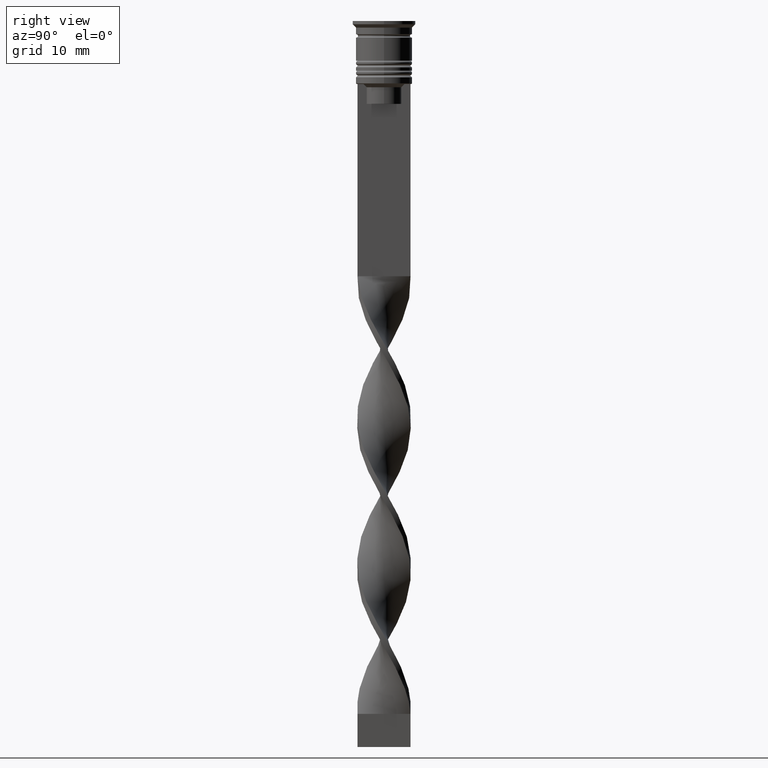
[diagram: clean part render]
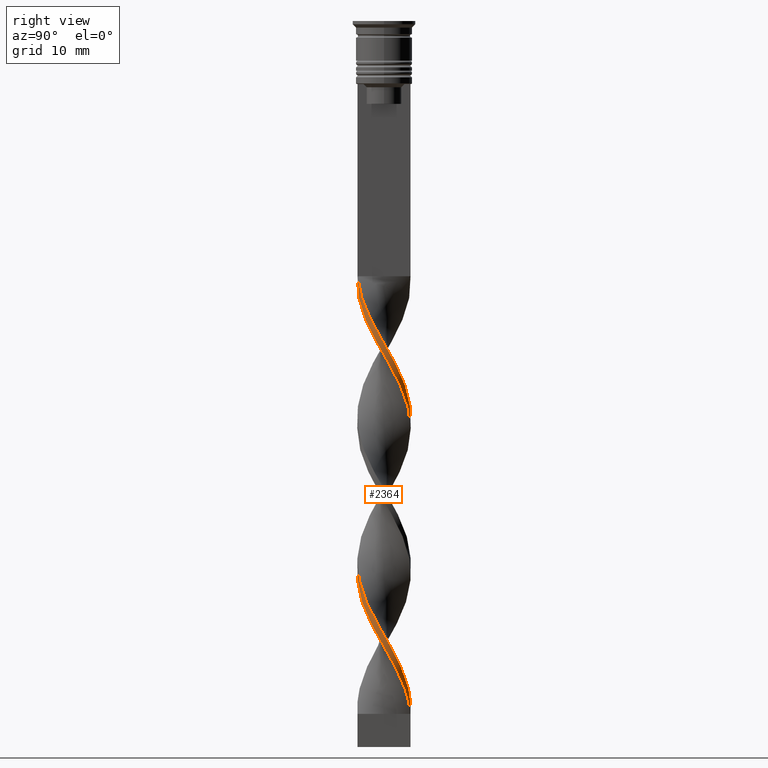
[diagram: same view with one face highlighted and labeled with its STEP entity id]
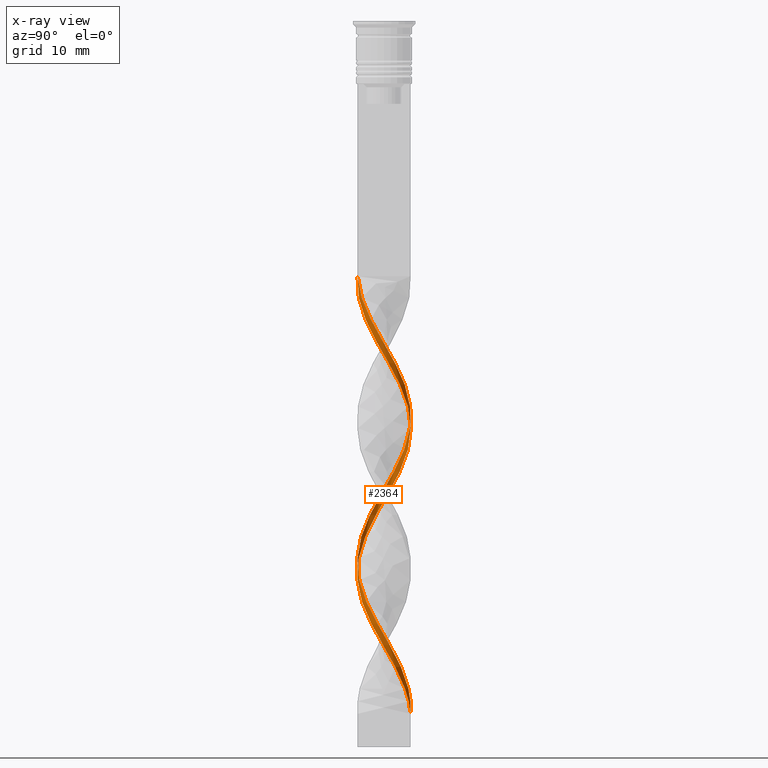
[diagram: x-ray of the same camera — body ghosted, the highlighted face saturated]
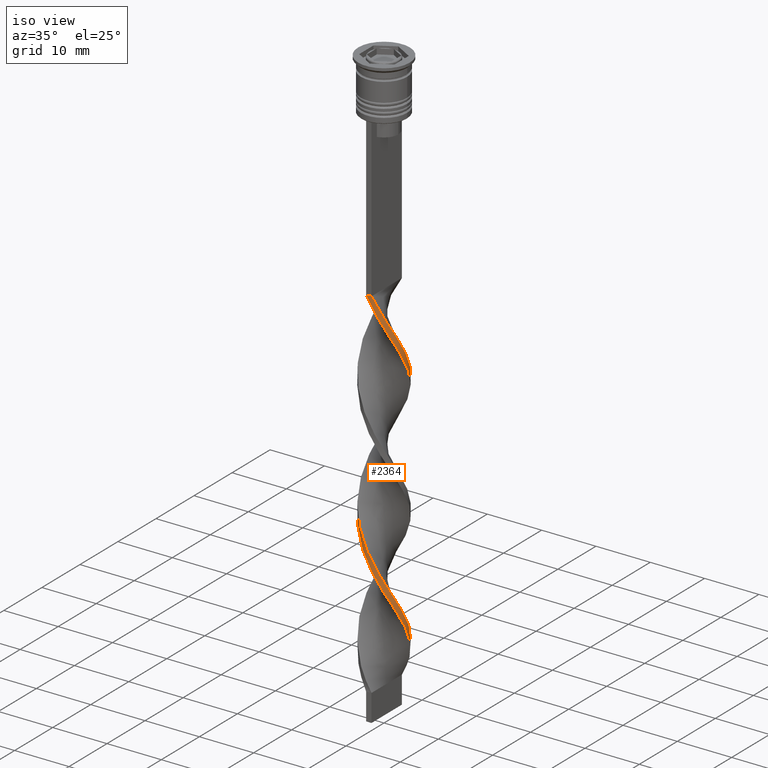
[diagram: same view with one face highlighted and labeled with its STEP entity id]
A machine part, right view. The second image highlights one B-rep face of the part: STEP entity #2364.
The next image is the same camera in x-ray: the body ghosted, the highlighted face saturated — about 0% of this face is hidden behind the body in this view.
A second angle (iso view) of the same face is appended — the face is thin or edge-on in the first view.
In plain terms, the highlighted face is a freeform B-spline surface patch.
Its self-contained STEP definition (entity closure, byte-faithful):
#4 = CARTESIAN_POINT ( 'NONE',  ( 4.029378707462731413, -0.5036723384328416486, -93.49999999999998579 ) ) ;
#7 = CARTESIAN_POINT ( 'NONE',  ( -3.575967836940203703, 1.860767053977795404, -67.26923076923077360 ) ) ;
#17 = CARTESIAN_POINT ( 'NONE',  ( -0.01431206711095789688, -4.060710991611130360, -83.34615384615386802 ) ) ;
#20 = CARTESIAN_POINT ( 'NONE',  ( 4.029378707462731413, 0.5036723384328412045, -49.50000000000000000 ) ) ;
#35 = CARTESIAN_POINT ( 'NONE',  ( -3.917367414262927561, -0.9509114268274349024, -74.03846153846153300 ) ) ;
#37 = CARTESIAN_POINT ( 'NONE',  ( 4.032828965577023972, -0.4752569063773721680, -47.80769230769230660 ) ) ;
#44 = ORIENTED_EDGE ( 'NONE', *, *, #1652, .T. ) ;
#54 = CARTESIAN_POINT ( 'NONE',  ( 3.575967836940203703, -1.860767053977795404, -45.26923076923076650 ) ) ;
#65 = CARTESIAN_POINT ( 'NONE',  ( -3.026746007048732423, -2.662481663564005174, -77.42307692307693401 ) ) ;
#67 = CARTESIAN_POINT ( 'NONE',  ( 0.01431206711095556715, -4.060710991611130360, -81.65384615384616041 ) ) ;
#106 = CARTESIAN_POINT ( 'NONE',  ( -3.791755605066378987, -1.453329977707795484, -73.19230769230770761 ) ) ;
#119 = CARTESIAN_POINT ( 'NONE',  ( 2.682036731043690114, -3.048976478425000636, -44.42307692307692690 ) ) ;
#122 = CARTESIAN_POINT ( 'NONE',  ( -0.9856879328890411074, 3.939289008388870084, -61.34615384615383959 ) ) ;
#155 = CARTESIAN_POINT ( 'NONE',  ( 0.9856879328890421066, -3.939289008388869640, -83.34615384615386802 ) ) ;
#156 = CARTESIAN_POINT ( 'NONE',  ( -4.029378707462731413, -0.5036723384328406494, -71.50000000000000000 ) ) ;
#157 =( BOUNDED_SURFACE ( )  B_SPLINE_SURFACE ( 1, 2, ( 
 ( #1238, #2052, #1253, #2904, #2620, #2352, #1199, #2369, #1219, #2582, #3136, #3112, #2597, #2294, #3150, #2918, #2869, #965, #442, #3185, #1787, #1753, #3166, #694, #925, #2309, #1804, #122, #2329, #1772, #1549, #639, #429, #2638, #2654, #661, #374, #1534, #911, #156, #1478, #106, #388, #476, #1076, #1878, #1058, #1856, #792, #3268, #1017, #1343, #1588, #2185, #2167, #1324, #2123, #1894, #3284, #807, #2933, #1910, #531, #1291, #1306, #3222, #244, #3005, #1647, #208, #2969, #456, #3203, #2671, #1842, #173, #2949, #751, #2438 ),
 ( #2461, #2421, #225, #2689, #1271, #192, #2986, #2385, #2406, #3472, #2705, #3511, #1034, #2141, #3530, #496, #512, #3242, #3553, #1607, #772, #2105, #1626, #2721, #1001, #734, #1564, #3488, #1933, #1664, #2763, #3047, #316, #1112, #3352, #3371, #873, #2478, #895, #844, #2256, #282, #35, #1679, #859, #1966, #65, #1998, #1383, #2794, #2491, #3029, #1982, #17, #1131, #2511, #1419, #3095, #3321, #2539, #2274, #1400, #3078, #267, #620, #4, #2777, #825, #2224, #1435, #555, #2525, #1363, #2745, #1147, #606, #1950, #2241, #3335 ) ),
 .UNSPECIFIED., .F., .F., .F. ) 
 B_SPLINE_SURFACE_WITH_KNOTS ( ( 2, 2 ),
 ( 3, 2, 2, 2, 2, 2, 2, 2, 2, 2, 2, 2, 2, 2, 2, 2, 2, 2, 2, 2, 2, 2, 2, 2, 2, 2, 2, 2, 2, 2, 2, 2, 2, 2, 2, 2, 2, 2, 2, 3 ),
 ( 0.000000000000000000, 1.000000000000000000 ),
 ( 0.000000000000000000, 0.01923076923076923184, 0.03846153846153846367, 0.05769230769230769551, 0.07692307692307692735, 0.09615384615384615918, 0.1153846153846153910, 0.1346153846153846090, 0.1538461538461538547, 0.1730769230769230727, 0.1923076923076923184, 0.2115384615384615363, 0.2307692307692307820, 0.2500000000000000000, 0.2692307692307692180, 0.2884615384615384359, 0.3076923076923077094, 0.3269230769230769273, 0.3461538461538461453, 0.3653846153846153633, 0.3846153846153846367, 0.4038461538461538547, 0.4230769230769230727, 0.4423076923076922906, 0.4615384615384615641, 0.4807692307692307820, 0.5000000000000000000, 0.5192307692307692735, 0.5384615384615384359, 0.5576923076923077094, 0.5769230769230768718, 0.5961538461538461453, 0.6153846153846154188, 0.6346153846153845812, 0.6538461538461538547, 0.6730769230769231282, 0.6923076923076922906, 0.7115384615384615641, 0.7307692307692307265, 0.7500000000000000000 ),
 .UNSPECIFIED. ) 
 GEOMETRIC_REPRESENTATION_ITEM ( )  RATIONAL_B_SPLINE_SURFACE ( (
 ( 1.000000000000000000, 0.9927088740980539727, 1.000000000000000000, 0.9927088740980539727, 1.000000000000000000, 0.9927088740980539727, 1.000000000000000000, 0.9927088740980539727, 1.000000000000000000, 0.9927088740980539727, 1.000000000000000000, 0.9927088740980539727, 1.000000000000000000, 0.9927088740980539727, 1.000000000000000000, 0.9927088740980539727, 1.000000000000000000, 0.9927088740980539727, 1.000000000000000000, 0.9927088740980539727, 1.000000000000000000, 0.9927088740980539727, 1.000000000000000000, 0.9927088740980539727, 1.000000000000000000, 0.9927088740980539727, 1.000000000000000000, 0.9927088740980539727, 1.000000000000000000, 0.9927088740980539727, 1.000000000000000000, 0.9927088740980539727, 1.000000000000000000, 0.9927088740980539727, 1.000000000000000000, 0.9927088740980539727, 1.000000000000000000, 0.9927088740980539727, 1.000000000000000000, 0.9927088740980539727, 1.000000000000000000, 0.9927088740980539727, 1.000000000000000000, 0.9927088740980539727, 1.000000000000000000, 0.9927088740980539727, 1.000000000000000000, 0.9927088740980539727, 1.000000000000000000, 0.9927088740980539727, 1.000000000000000000, 0.9927088740980539727, 1.000000000000000000, 0.9927088740980539727, 1.000000000000000000, 0.9927088740980539727, 1.000000000000000000, 0.9927088740980539727, 1.000000000000000000, 0.9927088740980539727, 1.000000000000000000, 0.9927088740980539727, 1.000000000000000000, 0.9927088740980539727, 1.000000000000000000, 0.9927088740980539727, 1.000000000000000000, 0.9927088740980539727, 1.000000000000000000, 0.9927088740980539727, 1.000000000000000000, 0.9927088740980539727, 1.000000000000000000, 0.9927088740980539727, 1.000000000000000000, 0.9927088740980539727, 1.000000000000000000, 0.9927088740980539727, 1.000000000000000000),
 ( 1.000000000000000000, 0.9927088740980539727, 1.000000000000000000, 0.9927088740980539727, 1.000000000000000000, 0.9927088740980539727, 1.000000000000000000, 0.9927088740980539727, 1.000000000000000000, 0.9927088740980539727, 1.000000000000000000, 0.9927088740980539727, 1.000000000000000000, 0.9927088740980539727, 1.000000000000000000, 0.9927088740980539727, 1.000000000000000000, 0.9927088740980539727, 1.000000000000000000, 0.9927088740980539727, 1.000000000000000000, 0.9927088740980539727, 1.000000000000000000, 0.9927088740980539727, 1.000000000000000000, 0.9927088740980539727, 1.000000000000000000, 0.9927088740980539727, 1.000000000000000000, 0.9927088740980539727, 1.000000000000000000, 0.9927088740980539727, 1.000000000000000000, 0.9927088740980539727, 1.000000000000000000, 0.9927088740980539727, 1.000000000000000000, 0.9927088740980539727, 1.000000000000000000, 0.9927088740980539727, 1.000000000000000000, 0.9927088740980539727, 1.000000000000000000, 0.9927088740980539727, 1.000000000000000000, 0.9927088740980539727, 1.000000000000000000, 0.9927088740980539727, 1.000000000000000000, 0.9927088740980539727, 1.000000000000000000, 0.9927088740980539727, 1.000000000000000000, 0.9927088740980539727, 1.000000000000000000, 0.9927088740980539727, 1.000000000000000000, 0.9927088740980539727, 1.000000000000000000, 0.9927088740980539727, 1.000000000000000000, 0.9927088740980539727, 1.000000000000000000, 0.9927088740980539727, 1.000000000000000000, 0.9927088740980539727, 1.000000000000000000, 0.9927088740980539727, 1.000000000000000000, 0.9927088740980539727, 1.000000000000000000, 0.9927088740980539727, 1.000000000000000000, 0.9927088740980539727, 1.000000000000000000, 0.9927088740980539727, 1.000000000000000000, 0.9927088740980539727, 1.000000000000000000) ) ) 
 REPRESENTATION_ITEM ( '' )  SURFACE ( )  );
#170 = CARTESIAN_POINT ( 'NONE',  ( 3.801905862948830261, 1.426565947277498081, -96.88461538461538680 ) ) ;
#173 = CARTESIAN_POINT ( 'NONE',  ( 0.9578955639853687920, 3.946139212084844416, -101.9615384615384670 ) ) ;
#184 = CARTESIAN_POINT ( 'NONE',  ( 1.899779198837473038, 3.588929866731988660, -57.96153846153846700 ) ) ;
#192 = CARTESIAN_POINT ( 'NONE',  ( 1.874433786711570571, -3.602232165184604096, -42.73076923076923350 ) ) ;
#205 = CARTESIAN_POINT ( 'NONE',  ( 3.026746007048731979, 2.662481663564005618, -99.42307692307691980 ) ) ;
#208 = CARTESIAN_POINT ( 'NONE',  ( 3.333769449374405447, 2.318525361317902433, -96.88461538461538680 ) ) ;
#222 = CARTESIAN_POINT ( 'NONE',  ( 3.791755605066377655, -1.453329977707797260, -91.80769230769230660 ) ) ;
#225 = CARTESIAN_POINT ( 'NONE',  ( 0.4717917484372050052, -4.003425101847986944, -40.19230769230769340 ) ) ;
#244 = CARTESIAN_POINT ( 'NONE',  ( 3.910567156264554534, 0.9785011580703186773, -94.34615384615385381 ) ) ;
#256 = VERTEX_POINT ( 'NONE', #1911 ) ;
#257 = ORIENTED_EDGE ( 'NONE', *, *, #2559, .T. ) ;
#267 = CARTESIAN_POINT ( 'NONE',  ( 3.791755605066377655, -1.453329977707797260, -91.80769230769230660 ) ) ;
#269 = CARTESIAN_POINT ( 'NONE',  ( 2.682036731043691002, 3.048976478424999303, -54.57692307692308731 ) ) ;
#282 = CARTESIAN_POINT ( 'NONE',  ( -4.032828965577023972, -0.4752569063773701696, -73.19230769230770761 ) ) ;
#316 = CARTESIAN_POINT ( 'NONE',  ( -2.278235258877629565, 3.325604321804802588, -65.57692307692308020 ) ) ;
#318 = CARTESIAN_POINT ( 'NONE',  ( 0.9578955639853689030, 3.946139212084843972, -57.96153846153846700 ) ) ;
#333 = CARTESIAN_POINT ( 'NONE',  ( -1.416164675348472235, -3.774185688634722702, -79.11538461538461320 ) ) ;
#370 = CARTESIAN_POINT ( 'NONE',  ( 0.1666666666666672403, 4.000000000000000000, -104.5000000000000142 ) ) ;
#373 = CARTESIAN_POINT ( 'NONE',  ( 3.801905862948830706, -1.426565947277498525, -90.11538461538462741 ) ) ;
#374 = CARTESIAN_POINT ( 'NONE',  ( -3.917367414262926673, 0.9509114268274362347, -68.96153846153846700 ) ) ;
#387 = CARTESIAN_POINT ( 'NONE',  ( 2.703462203165886368, -3.029995166449922284, -86.73076923076922640 ) ) ;
#388 = CARTESIAN_POINT ( 'NONE',  ( -3.562762527220391551, -1.885927669512849514, -74.03846153846153300 ) ) ;
#405 = CARTESIAN_POINT ( 'NONE',  ( 3.917367414262926673, -0.9509114268274357906, -90.96153846153845279 ) ) ;
#422 = CARTESIAN_POINT ( 'NONE',  ( 3.026746007048731979, 2.662481663564005618, -55.42307692307691980 ) ) ;
#428 = CARTESIAN_POINT ( 'NONE',  ( 4.031103836519878136, 0.01420771602773408804, -92.65384615384616041 ) ) ;
#429 = CARTESIAN_POINT ( 'NONE',  ( -3.026746007048730647, 2.662481663564007839, -65.57692307692308020 ) ) ;
#439 = CARTESIAN_POINT ( 'NONE',  ( 3.333769449374404559, -2.318525361317903322, -90.11538461538462741 ) ) ;
#442 = CARTESIAN_POINT ( 'NONE',  ( 3.007903090209048003, 2.683750919871450868, -53.73076923076923350 ) ) ;
#453 = CARTESIAN_POINT ( 'NONE',  ( 1.874433786711570349, -3.602232165184604096, -86.73076923076922640 ) ) ;
#456 = CARTESIAN_POINT ( 'NONE',  ( 2.682036731043690558, 3.048976478424999303, -98.57692307692310862 ) ) ;
#469 = CARTESIAN_POINT ( 'NONE',  ( 0.9856879328890441050, 3.939289008388869640, -59.65384615384615330 ) ) ;
#476 = CARTESIAN_POINT ( 'NONE',  ( -3.333769449374406335, -2.318525361317901101, -74.88461538461538680 ) ) ;
#492 = CARTESIAN_POINT ( 'NONE',  ( -0.9856879328890445491, -3.939289008388869640, -81.65384615384616041 ) ) ;
#496 = CARTESIAN_POINT ( 'NONE',  ( 4.032828965577023084, 0.4752569063773717239, -51.19230769230768630 ) ) ;
#512 = CARTESIAN_POINT ( 'NONE',  ( 3.917367414262927561, 0.9509114268274344584, -52.03846153846154010 ) ) ;
#531 = CARTESIAN_POINT ( 'NONE',  ( 3.917367414262926673, -0.9509114268274357906, -90.96153846153845279 ) ) ;
#555 = CARTESIAN_POINT ( 'NONE',  ( 3.575967836940204148, 1.860767053977794516, -97.73076923076922640 ) ) ;
#573 = CARTESIAN_POINT ( 'NONE',  ( -3.910567156264555422, -0.9785011580703162348, -72.34615384615383959 ) ) ;
#589 = CARTESIAN_POINT ( 'NONE',  ( -2.703462203165885924, 3.029995166449922728, -64.73076923076922640 ) ) ;
#606 = CARTESIAN_POINT ( 'NONE',  ( 1.899779198837473038, 3.588929866731988216, -101.9615384615384670 ) ) ;
#608 = CARTESIAN_POINT ( 'NONE',  ( -1.874433786711571237, -3.602232165184603652, -78.26923076923077360 ) ) ;
#620 = CARTESIAN_POINT ( 'NONE',  ( 3.910567156264554534, -0.9785011580703200096, -92.65384615384616041 ) ) ;
#638 = CARTESIAN_POINT ( 'NONE',  ( 3.562762527220391551, 1.885927669512849070, -96.03846153846154721 ) ) ;
#639 = CARTESIAN_POINT ( 'NONE',  ( -2.703462203165885924, 3.029995166449922728, -64.73076923076921219 ) ) ;
#660 = CARTESIAN_POINT ( 'NONE',  ( 3.333769449374405447, 2.318525361317902878, -96.88461538461538680 ) ) ;
#661 = CARTESIAN_POINT ( 'NONE',  ( -3.801905862948829373, 1.426565947277500745, -68.11538461538462741 ) ) ;
#672 = CARTESIAN_POINT ( 'NONE',  ( 0.5000000000000005551, 4.000000000000000000, -104.5000000000000142 ) ) ;
#691 = CARTESIAN_POINT ( 'NONE',  ( 4.029378707462731413, -0.5036723384328416486, -49.50000000000000000 ) ) ;
#694 = CARTESIAN_POINT ( 'NONE',  ( 0.9578955639853687920, 3.946139212084844416, -57.96153846153846700 ) ) ;
#704 = CARTESIAN_POINT ( 'NONE',  ( 0.5000000000000005551, 4.000000000000000000, -104.5000000000000142 ) ) ;
#711 = CARTESIAN_POINT ( 'NONE',  ( -0.01431206711095789862, -4.060710991611130360, -83.34615384615386802 ) ) ;
#730 = CARTESIAN_POINT ( 'NONE',  ( 2.301620701001679148, 3.309462516590954806, -101.1153846153846132 ) ) ;
#734 = CARTESIAN_POINT ( 'NONE',  ( 0.9856879328890439940, 3.939289008388870084, -59.65384615384615330 ) ) ;
#746 = CARTESIAN_POINT ( 'NONE',  ( -1.442733565863260736, -3.764109437560427818, -80.80769230769230660 ) ) ;
#751 = CARTESIAN_POINT ( 'NONE',  ( -0.01431206711095605461, 4.060710991611130360, -103.6538461538461604 ) ) ;
#767 = CARTESIAN_POINT ( 'NONE',  ( -0.4717917484372037285, 4.003425101847986944, -62.19230769230769340 ) ) ;
#772 = CARTESIAN_POINT ( 'NONE',  ( 3.026746007048731979, 2.662481663564005618, -55.42307692307691980 ) ) ;
#786 = CARTESIAN_POINT ( 'NONE',  ( 2.301620701001679148, 3.309462516590954806, -57.11538461538461320 ) ) ;
#792 = CARTESIAN_POINT ( 'NONE',  ( -1.416164675348472235, -3.774185688634722702, -79.11538461538461320 ) ) ;
#807 = CARTESIAN_POINT ( 'NONE',  ( 3.350029810931576701, -2.294968160678092506, -88.42307692307693401 ) ) ;
#825 = CARTESIAN_POINT ( 'NONE',  ( 4.032828965577023084, 0.4752569063773717239, -95.19230769230769340 ) ) ;
#831 = CARTESIAN_POINT ( 'NONE',  ( 1.899779198837471705, -3.588929866731989549, -41.03846153846154010 ) ) ;
#844 = CARTESIAN_POINT ( 'NONE',  ( -4.029378707462731413, 0.5036723384328422037, -71.50000000000000000 ) ) ;
#846 = CARTESIAN_POINT ( 'NONE',  ( -3.026746007048730647, 2.662481663564007839, -65.57692307692308020 ) ) ;
#855 = CARTESIAN_POINT ( 'NONE',  ( -0.4999999999999994449, 4.000000000000000000, -104.5000000000000142 ) ) ;
#859 = CARTESIAN_POINT ( 'NONE',  ( -3.575967836940204148, -1.860767053977794072, -75.73076923076924061 ) ) ;
#861 = CARTESIAN_POINT ( 'NONE',  ( -2.278235258877631786, -3.325604321804800811, -77.42307692307693401 ) ) ;
#873 = CARTESIAN_POINT ( 'NONE',  ( -3.562762527220391107, 1.885927669512850846, -68.96153846153846700 ) ) ;
#876 = CARTESIAN_POINT ( 'NONE',  ( 1.416164675348469792, 3.774185688634723146, -57.11538461538461320 ) ) ;
#895 = CARTESIAN_POINT ( 'NONE',  ( -3.910567156264554534, 0.9785011580703212308, -70.65384615384614619 ) ) ;
#897 = CARTESIAN_POINT ( 'NONE',  ( 4.031103836519878136, 0.01420771602773408804, -48.65384615384615330 ) ) ;
#911 = CARTESIAN_POINT ( 'NONE',  ( -4.031103836519878136, -0.01420771602773273322, -70.65384615384614619 ) ) ;
#925 = CARTESIAN_POINT ( 'NONE',  ( 0.4717917484372064485, 4.003425101847986056, -58.80769230769231370 ) ) ;
#945 = CARTESIAN_POINT ( 'NONE',  ( 1.874433786711570349, -3.602232165184604096, -42.73076923076923350 ) ) ;
#961 = CARTESIAN_POINT ( 'NONE',  ( 4.031103836519878136, -0.01420771602773549663, -50.34615384615384670 ) ) ;
#965 = CARTESIAN_POINT ( 'NONE',  ( 3.333769449374405447, 2.318525361317902433, -52.88461538461537970 ) ) ;
#979 = CARTESIAN_POINT ( 'NONE',  ( 1.874433786711570793, 3.602232165184603652, -100.2692307692307878 ) ) ;
#996 = CARTESIAN_POINT ( 'NONE',  ( -3.917367414262927561, -0.9509114268274349024, -74.03846153846153300 ) ) ;
#1001 = CARTESIAN_POINT ( 'NONE',  ( 1.442733565863258516, 3.764109437560428262, -58.80769230769231370 ) ) ;
#1013 = CARTESIAN_POINT ( 'NONE',  ( 0.9578955639853675708, -3.946139212084843972, -85.03846153846153300 ) ) ;
#1017 = CARTESIAN_POINT ( 'NONE',  ( -0.4717917484372087800, -4.003425101847986056, -80.80769230769230660 ) ) ;
#1031 = CARTESIAN_POINT ( 'NONE',  ( 0.5000000000000005551, 4.000000000000000000, -60.50000000000000000 ) ) ;
#1034 = CARTESIAN_POINT ( 'NONE',  ( 3.910567156264554534, -0.9785011580703200096, -48.65384615384615330 ) ) ;
#1051 = CARTESIAN_POINT ( 'NONE',  ( -3.910567156264554534, 0.9785011580703212308, -70.65384615384614619 ) ) ;
#1058 = CARTESIAN_POINT ( 'NONE',  ( -2.278235258877631786, -3.325604321804800811, -77.42307692307693401 ) ) ;
#1076 = CARTESIAN_POINT ( 'NONE',  ( -3.007903090209048891, -2.683750919871450868, -75.73076923076924061 ) ) ;
#1112 = CARTESIAN_POINT ( 'NONE',  ( -2.682036731043688782, 3.048976478425001524, -66.42307692307694822 ) ) ;
#1117 = CARTESIAN_POINT ( 'NONE',  ( 3.333769449374405447, 2.318525361317902878, -52.88461538461538680 ) ) ;
#1131 = CARTESIAN_POINT ( 'NONE',  ( 0.4717917484372050052, -4.003425101847986944, -84.19230769230769340 ) ) ;
#1133 = CARTESIAN_POINT ( 'NONE',  ( -3.917367414262926673, 0.9509114268274362347, -68.96153846153846700 ) ) ;
#1147 = CARTESIAN_POINT ( 'NONE',  ( 2.301620701001679148, 3.309462516590954806, -101.1153846153846132 ) ) ;
#1149 = CARTESIAN_POINT ( 'NONE',  ( -1.442733565863255851, 3.764109437560429594, -62.19230769230769340 ) ) ;
#1159 = EDGE_CURVE ( 'NONE', #256, #2150, #1261, .T. ) ;
#1166 = CARTESIAN_POINT ( 'NONE',  ( 3.026746007048731091, -2.662481663564006951, -43.57692307692307310 ) ) ;
#1198 = CARTESIAN_POINT ( 'NONE',  ( 1.442733565863256961, -3.764109437560429150, -84.19230769230769340 ) ) ;
#1199 = CARTESIAN_POINT ( 'NONE',  ( 3.026746007048731091, -2.662481663564006951, -43.57692307692307310 ) ) ;
#1213 = CARTESIAN_POINT ( 'NONE',  ( 0.5000000000000005551, 4.000000000000000000, -104.5000000000000142 ) ) ;
#1214 = CARTESIAN_POINT ( 'NONE',  ( 3.562762527220391107, -1.885927669512850402, -46.96153846153845990 ) ) ;
#1218 = CARTESIAN_POINT ( 'NONE',  ( 3.350029810931576701, -2.294968160678092506, -88.42307692307691980 ) ) ;
#1219 = CARTESIAN_POINT ( 'NONE',  ( 3.575967836940203703, -1.860767053977795404, -45.26923076923076650 ) ) ;
#1238 = CARTESIAN_POINT ( 'NONE',  ( 0.5000000000000000000, -4.000000000000000000, -38.50000000000000000 ) ) ;
#1252 = CARTESIAN_POINT ( 'NONE',  ( 2.278235258877631342, 3.325604321804801256, -99.42307692307691980 ) ) ;
#1253 = CARTESIAN_POINT ( 'NONE',  ( 1.442733565863256961, -3.764109437560429150, -40.19230769230769340 ) ) ;
#1261 =( BOUNDED_CURVE ( )  B_SPLINE_CURVE ( 2, ( #3305, #2765, #2813, #831, #1701, #2748, #1166, #2527, #54, #1386, #2513, #37, #897, #20, #1718, #3323, #2278, #1117, #3064, #269, #2258, #1936, #876, #318, #2000, #1421, #1366, #1650, #1149, #1968, #2226, #589, #846, #2480, #7, #1952, #1133, #3049, #1986, #3081, #573, #3354, #1681, #2780, #2243, #3339, #861, #608, #333, #1437, #2541, #67, #2829, #155, #1198, #2617, #3111, #387, #2032, #1218, #2326, #373, #405, #2637, #428, #2293, #1533, #3454, #638, #660, #1477, #3165, #1252, #979, #3135, #3420, #3385, #2563, #2015 ),
 .UNSPECIFIED., .F., .T. ) 
 B_SPLINE_CURVE_WITH_KNOTS ( ( 3, 2, 2, 2, 2, 2, 2, 2, 2, 2, 2, 2, 2, 2, 2, 2, 2, 2, 2, 2, 2, 2, 2, 2, 2, 2, 2, 2, 2, 2, 2, 2, 2, 2, 2, 2, 2, 2, 2, 3 ),
 ( 0.000000000000000000, 0.01923076923076923184, 0.03846153846153846367, 0.05769230769230768857, 0.07692307692307692735, 0.09615384615384615918, 0.1153846153846153771, 0.1346153846153846090, 0.1538461538461538547, 0.1730769230769230449, 0.1923076923076923184, 0.2115384615384615363, 0.2307692307692307543, 0.2500000000000000000, 0.2692307692307692180, 0.2884615384615384359, 0.3076923076923077094, 0.3269230769230769273, 0.3461538461538460898, 0.3653846153846153633, 0.3846153846153846367, 0.4038461538461539102, 0.4230769230769230727, 0.4423076923076922906, 0.4615384615384615086, 0.4807692307692307820, 0.5000000000000000000, 0.5192307692307692735, 0.5384615384615384359, 0.5576923076923077094, 0.5769230769230768718, 0.5961538461538461453, 0.6153846153846154188, 0.6346153846153845812, 0.6538461538461538547, 0.6730769230769230171, 0.6923076923076921796, 0.7115384615384615641, 0.7307692307692307265, 0.7500000000000000000 ),
 .UNSPECIFIED. ) 
 CURVE ( )  GEOMETRIC_REPRESENTATION_ITEM ( )  RATIONAL_B_SPLINE_CURVE ( ( 1.000000000000000000, 0.9927088740980539727, 1.000000000000000000, 0.9927088740980539727, 1.000000000000000000, 0.9927088740980539727, 1.000000000000000000, 0.9927088740980539727, 1.000000000000000000, 0.9927088740980539727, 1.000000000000000000, 0.9927088740980539727, 1.000000000000000000, 0.9927088740980539727, 1.000000000000000000, 0.9927088740980539727, 1.000000000000000000, 0.9927088740980539727, 1.000000000000000000, 0.9927088740980539727, 1.000000000000000000, 0.9927088740980539727, 1.000000000000000000, 0.9927088740980539727, 1.000000000000000000, 0.9927088740980539727, 1.000000000000000000, 0.9927088740980539727, 1.000000000000000000, 0.9927088740980539727, 1.000000000000000000, 0.9927088740980539727, 1.000000000000000000, 0.9927088740980539727, 1.000000000000000000, 0.9927088740980539727, 1.000000000000000000, 0.9927088740980539727, 1.000000000000000000, 0.9927088740980539727, 1.000000000000000000, 0.9927088740980539727, 1.000000000000000000, 0.9927088740980539727, 1.000000000000000000, 0.9927088740980539727, 1.000000000000000000, 0.9927088740980539727, 1.000000000000000000, 0.9927088740980539727, 1.000000000000000000, 0.9927088740980539727, 1.000000000000000000, 0.9927088740980539727, 1.000000000000000000, 0.9927088740980539727, 1.000000000000000000, 0.9927088740980539727, 1.000000000000000000, 0.9927088740980539727, 1.000000000000000000, 0.9927088740980539727, 1.000000000000000000, 0.9927088740980539727, 1.000000000000000000, 0.9927088740980539727, 1.000000000000000000, 0.9927088740980539727, 1.000000000000000000, 0.9927088740980539727, 1.000000000000000000, 0.9927088740980539727, 1.000000000000000000, 0.9927088740980539727, 1.000000000000000000, 0.9927088740980539727, 1.000000000000000000, 0.9927088740980539727, 1.000000000000000000 ) ) 
 REPRESENTATION_ITEM ( '' )  );
#1266 = CARTESIAN_POINT ( 'NONE',  ( -4.031103836519877248, 0.01420771602773772055, -72.34615384615383959 ) ) ;
#1271 = CARTESIAN_POINT ( 'NONE',  ( 1.416164675348469126, -3.774185688634723590, -41.88461538461537970 ) ) ;
#1288 = CARTESIAN_POINT ( 'NONE',  ( -2.278235258877629565, 3.325604321804802588, -65.57692307692308020 ) ) ;
#1291 = CARTESIAN_POINT ( 'NONE',  ( 4.032828965577023972, -0.4752569063773721680, -91.80769230769230660 ) ) ;
#1303 = CARTESIAN_POINT ( 'NONE',  ( -3.333769449374404115, 2.318525361317905098, -68.11538461538461320 ) ) ;
#1306 = CARTESIAN_POINT ( 'NONE',  ( 4.031103836519878136, 0.01420771602773408804, -92.65384615384616041 ) ) ;
#1320 = CARTESIAN_POINT ( 'NONE',  ( -2.301620701001681368, -3.309462516590953474, -79.11538461538461320 ) ) ;
#1324 = CARTESIAN_POINT ( 'NONE',  ( 1.899779198837471705, -3.588929866731989105, -85.03846153846153300 ) ) ;
#1343 = CARTESIAN_POINT ( 'NONE',  ( 0.01431206711095556715, -4.060710991611130360, -81.65384615384616041 ) ) ;
#1363 = CARTESIAN_POINT ( 'NONE',  ( 3.026746007048731979, 2.662481663564005618, -99.42307692307691980 ) ) ;
#1366 = CARTESIAN_POINT ( 'NONE',  ( -0.4999999999999994449, 4.000000000000000000, -60.50000000000000000 ) ) ;
#1383 = CARTESIAN_POINT ( 'NONE',  ( -2.301620701001681368, -3.309462516590953474, -79.11538461538461320 ) ) ;
#1386 = CARTESIAN_POINT ( 'NONE',  ( 3.801905862948830706, -1.426565947277498525, -46.11538461538462030 ) ) ;
#1400 = CARTESIAN_POINT ( 'NONE',  ( 3.333769449374405003, -2.318525361317902878, -90.11538461538462741 ) ) ;
#1419 = CARTESIAN_POINT ( 'NONE',  ( 1.416164675348469126, -3.774185688634723590, -85.88461538461538680 ) ) ;
#1421 = CARTESIAN_POINT ( 'NONE',  ( -0.01431206711095605461, 4.060710991611130360, -59.65384615384615330 ) ) ;
#1435 = CARTESIAN_POINT ( 'NONE',  ( 3.801905862948830261, 1.426565947277498081, -96.88461538461538680 ) ) ;
#1437 = CARTESIAN_POINT ( 'NONE',  ( -0.9578955639853693471, -3.946139212084843972, -79.96153846153846700 ) ) ;
#1474 = CARTESIAN_POINT ( 'NONE',  ( 3.350029810931577590, 2.294968160678091174, -54.57692307692308731 ) ) ;
#1477 = CARTESIAN_POINT ( 'NONE',  ( 3.007903090209048003, 2.683750919871450868, -97.73076923076922640 ) ) ;
#1478 = CARTESIAN_POINT ( 'NONE',  ( -3.910567156264555422, -0.9785011580703162348, -72.34615384615383959 ) ) ;
#1491 = CARTESIAN_POINT ( 'NONE',  ( 0.4717917484372050052, -4.003425101847986944, -40.19230769230769340 ) ) ;
#1530 = CARTESIAN_POINT ( 'NONE',  ( 3.007903090209047559, -2.683750919871451757, -45.26923076923076650 ) ) ;
#1533 = CARTESIAN_POINT ( 'NONE',  ( 3.910567156264554534, 0.9785011580703186773, -94.34615384615385381 ) ) ;
#1534 = CARTESIAN_POINT ( 'NONE',  ( -4.032828965577023084, 0.4752569063773718350, -69.80769230769230660 ) ) ;
#1546 = CARTESIAN_POINT ( 'NONE',  ( 0.4717917484372050052, -4.003425101847986944, -84.19230769230769340 ) ) ;
#1549 = CARTESIAN_POINT ( 'NONE',  ( -2.301620701001678704, 3.309462516590955250, -63.88461538461538680 ) ) ;
#1561 = CARTESIAN_POINT ( 'NONE',  ( 0.01431206711095876771, 4.060710991611130360, -61.34615384615383249 ) ) ;
#1564 = CARTESIAN_POINT ( 'NONE',  ( 0.5000000000000005551, 4.000000000000000000, -60.50000000000000000 ) ) ;
#1582 = CARTESIAN_POINT ( 'NONE',  ( 3.562762527220391107, -1.885927669512850402, -90.96153846153845279 ) ) ;
#1588 = CARTESIAN_POINT ( 'NONE',  ( 0.5000000000000000000, -4.000000000000000000, -82.50000000000000000 ) ) ;
#1603 = CARTESIAN_POINT ( 'NONE',  ( 3.007903090209047559, -2.683750919871451757, -89.26923076923077360 ) ) ;
#1607 = CARTESIAN_POINT ( 'NONE',  ( 3.350029810931577590, 2.294968160678091618, -54.57692307692308731 ) ) ;
#1622 = VERTEX_POINT ( 'NONE', #1213 ) ;
#1626 = CARTESIAN_POINT ( 'NONE',  ( 2.301620701001679148, 3.309462516590954806, -57.11538461538461320 ) ) ;
#1644 =( BOUNDED_CURVE ( )  B_SPLINE_CURVE ( 2, ( #1782, #2864, #1491, #2594, #2346, #945, #3432, #119, #1530, #3147, #1214, #2290, #2049, #691, #961, #1800, #2899, #2013, #3110, #1474, #422, #3450, #786, #184, #2434, #469, #1031, #1561, #767, #3237, #1838, #2702, #1288, #3526, #2138, #1303, #2929, #1873, #1051, #2162, #1266, #2965, #996, #3217, #2120, #2418, #3263, #2665, #1320, #1890, #746, #492, #1823, #711, #1546, #1013, #3466, #453, #2915, #2102, #1603, #439, #1582, #222, #1853, #2401, #3484, #2649, #3506, #170, #2945, #2686, #205, #2380, #730, #3200, #3442, #3121, #704 ),
 .UNSPECIFIED., .F., .T. ) 
 B_SPLINE_CURVE_WITH_KNOTS ( ( 3, 2, 2, 2, 2, 2, 2, 2, 2, 2, 2, 2, 2, 2, 2, 2, 2, 2, 2, 2, 2, 2, 2, 2, 2, 2, 2, 2, 2, 2, 2, 2, 2, 2, 2, 2, 2, 2, 2, 3 ),
 ( 0.000000000000000000, 0.01923076923076923184, 0.03846153846153846367, 0.05769230769230768857, 0.07692307692307692735, 0.09615384615384615918, 0.1153846153846153771, 0.1346153846153846090, 0.1538461538461538547, 0.1730769230769230449, 0.1923076923076923184, 0.2115384615384615363, 0.2307692307692307543, 0.2500000000000000000, 0.2692307692307692180, 0.2884615384615384359, 0.3076923076923077094, 0.3269230769230769273, 0.3461538461538460898, 0.3653846153846153633, 0.3846153846153846367, 0.4038461538461539102, 0.4230769230769230727, 0.4423076923076922906, 0.4615384615384615086, 0.4807692307692307820, 0.5000000000000000000, 0.5192307692307692735, 0.5384615384615384359, 0.5576923076923077094, 0.5769230769230768718, 0.5961538461538461453, 0.6153846153846154188, 0.6346153846153845812, 0.6538461538461538547, 0.6730769230769230171, 0.6923076923076921796, 0.7115384615384615641, 0.7307692307692307265, 0.7500000000000000000 ),
 .UNSPECIFIED. ) 
 CURVE ( )  GEOMETRIC_REPRESENTATION_ITEM ( )  RATIONAL_B_SPLINE_CURVE ( ( 1.000000000000000000, 0.9927088740980539727, 1.000000000000000000, 0.9927088740980539727, 1.000000000000000000, 0.9927088740980539727, 1.000000000000000000, 0.9927088740980539727, 1.000000000000000000, 0.9927088740980539727, 1.000000000000000000, 0.9927088740980539727, 1.000000000000000000, 0.9927088740980539727, 1.000000000000000000, 0.9927088740980539727, 1.000000000000000000, 0.9927088740980539727, 1.000000000000000000, 0.9927088740980539727, 1.000000000000000000, 0.9927088740980539727, 1.000000000000000000, 0.9927088740980539727, 1.000000000000000000, 0.9927088740980539727, 1.000000000000000000, 0.9927088740980539727, 1.000000000000000000, 0.9927088740980539727, 1.000000000000000000, 0.9927088740980539727, 1.000000000000000000, 0.9927088740980539727, 1.000000000000000000, 0.9927088740980539727, 1.000000000000000000, 0.9927088740980539727, 1.000000000000000000, 0.9927088740980539727, 1.000000000000000000, 0.9927088740980539727, 1.000000000000000000, 0.9927088740980539727, 1.000000000000000000, 0.9927088740980539727, 1.000000000000000000, 0.9927088740980539727, 1.000000000000000000, 0.9927088740980539727, 1.000000000000000000, 0.9927088740980539727, 1.000000000000000000, 0.9927088740980539727, 1.000000000000000000, 0.9927088740980539727, 1.000000000000000000, 0.9927088740980539727, 1.000000000000000000, 0.9927088740980539727, 1.000000000000000000, 0.9927088740980539727, 1.000000000000000000, 0.9927088740980539727, 1.000000000000000000, 0.9927088740980539727, 1.000000000000000000, 0.9927088740980539727, 1.000000000000000000, 0.9927088740980539727, 1.000000000000000000, 0.9927088740980539727, 1.000000000000000000, 0.9927088740980539727, 1.000000000000000000, 0.9927088740980539727, 1.000000000000000000, 0.9927088740980539727, 1.000000000000000000 ) ) 
 REPRESENTATION_ITEM ( '' )  );
#1647 = CARTESIAN_POINT ( 'NONE',  ( 3.562762527220391551, 1.885927669512849070, -96.03846153846154721 ) ) ;
#1650 = CARTESIAN_POINT ( 'NONE',  ( -0.9856879328890412184, 3.939289008388869640, -61.34615384615383249 ) ) ;
#1652 = EDGE_CURVE ( 'NONE', #256, #2469, #1781, .T. ) ;
#1664 = CARTESIAN_POINT ( 'NONE',  ( -0.9578955639853662385, 3.946139212084844416, -63.03846153846153300 ) ) ;
#1679 = CARTESIAN_POINT ( 'NONE',  ( -3.801905862948831150, -1.426565947277496083, -74.88461538461538680 ) ) ;
#1681 = CARTESIAN_POINT ( 'NONE',  ( -3.562762527220391551, -1.885927669512849514, -74.03846153846153300 ) ) ;
#1701 = CARTESIAN_POINT ( 'NONE',  ( 2.301620701001678704, -3.309462516590955250, -41.88461538461537970 ) ) ;
#1704 = EDGE_CURVE ( 'NONE', #2150, #1622, #2942, .T. ) ;
#1718 = CARTESIAN_POINT ( 'NONE',  ( 3.910567156264554534, 0.9785011580703186773, -50.34615384615384670 ) ) ;
#1745 = DIRECTION ( 'NONE',  ( -1.000000000000000000, 0.000000000000000000, 0.000000000000000000 ) ) ;
#1753 = CARTESIAN_POINT ( 'NONE',  ( 1.874433786711571015, 3.602232165184603652, -56.26923076923076650 ) ) ;
#1772 = CARTESIAN_POINT ( 'NONE',  ( -1.899779198837470373, 3.588929866731989549, -63.03846153846153300 ) ) ;
#1781 = LINE ( 'NONE', #3145, #3014 ) ;
#1782 = CARTESIAN_POINT ( 'NONE',  ( -0.5000000000000000000, -4.000000000000000000, -38.50000000000000000 ) ) ;
#1787 = CARTESIAN_POINT ( 'NONE',  ( 2.278235258877631342, 3.325604321804801256, -55.42307692307691980 ) ) ;
#1799 = CARTESIAN_POINT ( 'NONE',  ( -0.1666666666666661578, 4.000000000000000000, -104.5000000000000142 ) ) ;
#1800 = CARTESIAN_POINT ( 'NONE',  ( 4.032828965577023084, 0.4752569063773717239, -51.19230769230768630 ) ) ;
#1804 = CARTESIAN_POINT ( 'NONE',  ( -0.4999999999999994449, 4.000000000000000000, -60.50000000000000000 ) ) ;
#1823 = CARTESIAN_POINT ( 'NONE',  ( -0.5000000000000000000, -4.000000000000000000, -82.50000000000000000 ) ) ;
#1838 = CARTESIAN_POINT ( 'NONE',  ( -1.416164675348468904, 3.774185688634723590, -63.88461538461538680 ) ) ;
#1842 = CARTESIAN_POINT ( 'NONE',  ( 1.416164675348469792, 3.774185688634723146, -101.1153846153846132 ) ) ;
#1848 = EDGE_LOOP ( 'NONE', ( #44, #257, #2316, #2413 ) ) ;
#1853 = CARTESIAN_POINT ( 'NONE',  ( 3.910567156264554534, -0.9785011580703200096, -92.65384615384616041 ) ) ;
#1856 = CARTESIAN_POINT ( 'NONE',  ( -1.874433786711571459, -3.602232165184603652, -78.26923076923075939 ) ) ;
#1873 = CARTESIAN_POINT ( 'NONE',  ( -3.791755605066377655, 1.453329977707796816, -69.80769230769230660 ) ) ;
#1878 = CARTESIAN_POINT ( 'NONE',  ( -2.682036731043692335, -3.048976478424997527, -76.57692307692306599 ) ) ;
#1890 = CARTESIAN_POINT ( 'NONE',  ( -1.899779198837473482, -3.588929866731988660, -79.96153846153846700 ) ) ;
#1894 = CARTESIAN_POINT ( 'NONE',  ( 2.703462203165886368, -3.029995166449922284, -86.73076923076922640 ) ) ;
#1910 = CARTESIAN_POINT ( 'NONE',  ( 3.801905862948830706, -1.426565947277498525, -90.11538461538462741 ) ) ;
#1911 = CARTESIAN_POINT ( 'NONE',  ( 0.5000000000000000000, -4.000000000000000000, -38.50000000000000000 ) ) ;
#1933 = CARTESIAN_POINT ( 'NONE',  ( -0.4717917484372037285, 4.003425101847986944, -62.19230769230769340 ) ) ;
#1936 = CARTESIAN_POINT ( 'NONE',  ( 1.874433786711570793, 3.602232165184603652, -56.26923076923076650 ) ) ;
#1950 = CARTESIAN_POINT ( 'NONE',  ( 1.442733565863258516, 3.764109437560428262, -102.8076923076923208 ) ) ;
#1952 = CARTESIAN_POINT ( 'NONE',  ( -3.801905862948829373, 1.426565947277500745, -68.11538461538461320 ) ) ;
#1966 = CARTESIAN_POINT ( 'NONE',  ( -3.350029810931578478, -2.294968160678088953, -76.57692307692306599 ) ) ;
#1968 = CARTESIAN_POINT ( 'NONE',  ( -1.899779198837470373, 3.588929866731989993, -63.03846153846154010 ) ) ;
#1982 = CARTESIAN_POINT ( 'NONE',  ( -0.5000000000000000000, -4.000000000000000000, -82.50000000000000000 ) ) ;
#1986 = CARTESIAN_POINT ( 'NONE',  ( -4.031103836519878136, -0.01420771602773273322, -70.65384615384614619 ) ) ;
#1998 = CARTESIAN_POINT ( 'NONE',  ( -2.703462203165886812, -3.029995166449921840, -78.26923076923075939 ) ) ;
#2000 = CARTESIAN_POINT ( 'NONE',  ( 0.4717917484372064485, 4.003425101847986056, -58.80769230769231370 ) ) ;
#2013 = CARTESIAN_POINT ( 'NONE',  ( 3.801905862948830261, 1.426565947277498081, -52.88461538461538680 ) ) ;
#2015 = CARTESIAN_POINT ( 'NONE',  ( -0.4999999999999994449, 4.000000000000000000, -104.5000000000000142 ) ) ;
#2032 = CARTESIAN_POINT ( 'NONE',  ( 3.026746007048731091, -2.662481663564006951, -87.57692307692308020 ) ) ;
#2049 = CARTESIAN_POINT ( 'NONE',  ( 3.910567156264554534, -0.9785011580703200096, -48.65384615384615330 ) ) ;
#2052 = CARTESIAN_POINT ( 'NONE',  ( 0.9856879328890421066, -3.939289008388870084, -39.34615384615384670 ) ) ;
#2102 = CARTESIAN_POINT ( 'NONE',  ( 2.682036731043690114, -3.048976478425000636, -88.42307692307691980 ) ) ;
#2105 = CARTESIAN_POINT ( 'NONE',  ( 2.703462203165886368, 3.029995166449921840, -56.26923076923076650 ) ) ;
#2120 = CARTESIAN_POINT ( 'NONE',  ( -3.575967836940204148, -1.860767053977794072, -75.73076923076924061 ) ) ;
#2123 = CARTESIAN_POINT ( 'NONE',  ( 2.301620701001678704, -3.309462516590955250, -85.88461538461538680 ) ) ;
#2138 = CARTESIAN_POINT ( 'NONE',  ( -3.007903090209047559, 2.683750919871451757, -67.26923076923077360 ) ) ;
#2141 = CARTESIAN_POINT ( 'NONE',  ( 4.029378707462731413, -0.5036723384328416486, -49.50000000000000000 ) ) ;
#2150 = VERTEX_POINT ( 'NONE', #855 ) ;
#2162 = CARTESIAN_POINT ( 'NONE',  ( -4.029378707462731413, 0.5036723384328422037, -71.50000000000001421 ) ) ;
#2167 = CARTESIAN_POINT ( 'NONE',  ( 1.442733565863256961, -3.764109437560429150, -84.19230769230769340 ) ) ;
#2185 = CARTESIAN_POINT ( 'NONE',  ( 0.9856879328890421066, -3.939289008388870084, -83.34615384615386802 ) ) ;
#2224 = CARTESIAN_POINT ( 'NONE',  ( 3.917367414262927561, 0.9509114268274344584, -96.03846153846154721 ) ) ;
#2226 = CARTESIAN_POINT ( 'NONE',  ( -2.301620701001678704, 3.309462516590955250, -63.88461538461538680 ) ) ;
#2241 = CARTESIAN_POINT ( 'NONE',  ( 0.9856879328890439940, 3.939289008388870084, -103.6538461538461604 ) ) ;
#2243 = CARTESIAN_POINT ( 'NONE',  ( -3.007903090209048891, -2.683750919871450868, -75.73076923076924061 ) ) ;
#2256 = CARTESIAN_POINT ( 'NONE',  ( -4.031103836519877248, 0.01420771602773772055, -72.34615384615383959 ) ) ;
#2258 = CARTESIAN_POINT ( 'NONE',  ( 2.278235258877631342, 3.325604321804801256, -55.42307692307691980 ) ) ;
#2274 = CARTESIAN_POINT ( 'NONE',  ( 3.007903090209047559, -2.683750919871451757, -89.26923076923077360 ) ) ;
#2278 = CARTESIAN_POINT ( 'NONE',  ( 3.562762527220391551, 1.885927669512849070, -52.03846153846154010 ) ) ;
#2290 = CARTESIAN_POINT ( 'NONE',  ( 3.791755605066377655, -1.453329977707797260, -47.80769230769230660 ) ) ;
#2293 = CARTESIAN_POINT ( 'NONE',  ( 4.029378707462731413, 0.5036723384328412045, -93.50000000000000000 ) ) ;
#2294 = CARTESIAN_POINT ( 'NONE',  ( 4.029378707462731413, 0.5036723384328412045, -49.50000000000000000 ) ) ;
#2309 = CARTESIAN_POINT ( 'NONE',  ( -0.01431206711095605461, 4.060710991611130360, -59.65384615384615330 ) ) ;
#2316 = ORIENTED_EDGE ( 'NONE', *, *, #1704, .F. ) ;
#2326 = CARTESIAN_POINT ( 'NONE',  ( 3.575967836940203703, -1.860767053977795404, -89.26923076923077360 ) ) ;
#2329 = CARTESIAN_POINT ( 'NONE',  ( -1.442733565863255851, 3.764109437560429594, -62.19230769230769340 ) ) ;
#2346 = CARTESIAN_POINT ( 'NONE',  ( 1.416164675348469126, -3.774185688634723590, -41.88461538461537970 ) ) ;
#2352 = CARTESIAN_POINT ( 'NONE',  ( 2.703462203165886368, -3.029995166449922284, -42.73076923076923350 ) ) ;
#2364 = ADVANCED_FACE ( 'NONE', ( #3455 ), #157, .T. ) ;
#2369 = CARTESIAN_POINT ( 'NONE',  ( 3.350029810931576701, -2.294968160678092506, -44.42307692307691980 ) ) ;
#2380 = CARTESIAN_POINT ( 'NONE',  ( 2.703462203165886368, 3.029995166449921840, -100.2692307692307878 ) ) ;
#2385 = CARTESIAN_POINT ( 'NONE',  ( 2.682036731043689670, -3.048976478425000636, -44.42307692307691980 ) ) ;
#2401 = CARTESIAN_POINT ( 'NONE',  ( 4.029378707462731413, -0.5036723384328416486, -93.50000000000000000 ) ) ;
#2406 = CARTESIAN_POINT ( 'NONE',  ( 3.007903090209047559, -2.683750919871451757, -45.26923076923076650 ) ) ;
#2413 = ORIENTED_EDGE ( 'NONE', *, *, #1159, .F. ) ;
#2418 = CARTESIAN_POINT ( 'NONE',  ( -3.350029810931578478, -2.294968160678088509, -76.57692307692306599 ) ) ;
#2421 = CARTESIAN_POINT ( 'NONE',  ( -0.01431206711095789688, -4.060710991611130360, -39.34615384615384670 ) ) ;
#2434 = CARTESIAN_POINT ( 'NONE',  ( 1.442733565863258516, 3.764109437560428262, -58.80769230769231370 ) ) ;
#2438 = CARTESIAN_POINT ( 'NONE',  ( -0.4999999999999994449, 4.000000000000000000, -104.5000000000000142 ) ) ;
#2461 = CARTESIAN_POINT ( 'NONE',  ( -0.5000000000000000000, -4.000000000000000000, -38.50000000000000000 ) ) ;
#2469 = VERTEX_POINT ( 'NONE', #2827 ) ;
#2478 = CARTESIAN_POINT ( 'NONE',  ( -3.791755605066377655, 1.453329977707796816, -69.80769230769230660 ) ) ;
#2480 = CARTESIAN_POINT ( 'NONE',  ( -3.350029810931575813, 2.294968160678093394, -66.42307692307693401 ) ) ;
#2491 = CARTESIAN_POINT ( 'NONE',  ( -1.442733565863260736, -3.764109437560427818, -80.80769230769230660 ) ) ;
#2511 = CARTESIAN_POINT ( 'NONE',  ( 0.9578955639853675708, -3.946139212084844416, -85.03846153846153300 ) ) ;
#2513 = CARTESIAN_POINT ( 'NONE',  ( 3.917367414262926673, -0.9509114268274357906, -46.96153846153845990 ) ) ;
#2525 = CARTESIAN_POINT ( 'NONE',  ( 3.350029810931577590, 2.294968160678091618, -98.57692307692310862 ) ) ;
#2527 = CARTESIAN_POINT ( 'NONE',  ( 3.350029810931576701, -2.294968160678092506, -44.42307692307692690 ) ) ;
#2539 = CARTESIAN_POINT ( 'NONE',  ( 2.682036731043689670, -3.048976478425000636, -88.42307692307693401 ) ) ;
#2541 = CARTESIAN_POINT ( 'NONE',  ( -0.4717917484372087800, -4.003425101847986056, -80.80769230769230660 ) ) ;
#2559 = EDGE_CURVE ( 'NONE', #2469, #1622, #1644, .T. ) ;
#2563 = CARTESIAN_POINT ( 'NONE',  ( -0.01431206711095605461, 4.060710991611130360, -103.6538461538461462 ) ) ;
#2582 = CARTESIAN_POINT ( 'NONE',  ( 3.801905862948830706, -1.426565947277498525, -46.11538461538462741 ) ) ;
#2594 = CARTESIAN_POINT ( 'NONE',  ( 0.9578955639853675708, -3.946139212084843972, -41.03846153846154010 ) ) ;
#2597 = CARTESIAN_POINT ( 'NONE',  ( 4.031103836519878136, 0.01420771602773408804, -48.65384615384615330 ) ) ;
#2617 = CARTESIAN_POINT ( 'NONE',  ( 1.899779198837471705, -3.588929866731989549, -85.03846153846153300 ) ) ;
#2620 = CARTESIAN_POINT ( 'NONE',  ( 2.301620701001678704, -3.309462516590955250, -41.88461538461537970 ) ) ;
#2637 = CARTESIAN_POINT ( 'NONE',  ( 4.032828965577023972, -0.4752569063773721680, -91.80769230769230660 ) ) ;
#2638 = CARTESIAN_POINT ( 'NONE',  ( -3.350029810931575813, 2.294968160678093394, -66.42307692307694822 ) ) ;
#2649 = CARTESIAN_POINT ( 'NONE',  ( 4.032828965577023084, 0.4752569063773717239, -95.19230769230769340 ) ) ;
#2654 = CARTESIAN_POINT ( 'NONE',  ( -3.575967836940203703, 1.860767053977795404, -67.26923076923077360 ) ) ;
#2665 = CARTESIAN_POINT ( 'NONE',  ( -2.703462203165886812, -3.029995166449921840, -78.26923076923077360 ) ) ;
#2671 = CARTESIAN_POINT ( 'NONE',  ( 1.874433786711571015, 3.602232165184603652, -100.2692307692307878 ) ) ;
#2686 = CARTESIAN_POINT ( 'NONE',  ( 3.350029810931577590, 2.294968160678091174, -98.57692307692310862 ) ) ;
#2689 = CARTESIAN_POINT ( 'NONE',  ( 0.9578955639853675708, -3.946139212084844416, -41.03846153846154010 ) ) ;
#2702 = CARTESIAN_POINT ( 'NONE',  ( -1.874433786711570127, 3.602232165184604540, -64.73076923076922640 ) ) ;
#2705 = CARTESIAN_POINT ( 'NONE',  ( 3.562762527220391107, -1.885927669512850402, -46.96153846153845990 ) ) ;
#2721 = CARTESIAN_POINT ( 'NONE',  ( 1.899779198837473038, 3.588929866731988216, -57.96153846153846700 ) ) ;
#2745 = CARTESIAN_POINT ( 'NONE',  ( 2.703462203165886368, 3.029995166449921840, -100.2692307692307878 ) ) ;
#2748 = CARTESIAN_POINT ( 'NONE',  ( 2.703462203165886368, -3.029995166449922284, -42.73076923076923350 ) ) ;
#2763 = CARTESIAN_POINT ( 'NONE',  ( -1.416164675348468904, 3.774185688634723590, -63.88461538461538680 ) ) ;
#2765 = CARTESIAN_POINT ( 'NONE',  ( 0.9856879328890421066, -3.939289008388869640, -39.34615384615384670 ) ) ;
#2777 = CARTESIAN_POINT ( 'NONE',  ( 4.031103836519878136, -0.01420771602773549663, -94.34615384615385381 ) ) ;
#2780 = CARTESIAN_POINT ( 'NONE',  ( -3.333769449374406335, -2.318525361317901101, -74.88461538461538680 ) ) ;
#2794 = CARTESIAN_POINT ( 'NONE',  ( -1.899779198837473482, -3.588929866731988216, -79.96153846153846700 ) ) ;
#2813 = CARTESIAN_POINT ( 'NONE',  ( 1.442733565863256961, -3.764109437560429150, -40.19230769230769340 ) ) ;
#2827 = CARTESIAN_POINT ( 'NONE',  ( -0.5000000000000000000, -4.000000000000000000, -38.50000000000000000 ) ) ;
#2829 = CARTESIAN_POINT ( 'NONE',  ( 0.5000000000000000000, -4.000000000000000000, -82.50000000000000000 ) ) ;
#2864 = CARTESIAN_POINT ( 'NONE',  ( -0.01431206711095789862, -4.060710991611130360, -39.34615384615384670 ) ) ;
#2869 = CARTESIAN_POINT ( 'NONE',  ( 3.562762527220391551, 1.885927669512849070, -52.03846153846154010 ) ) ;
#2899 = CARTESIAN_POINT ( 'NONE',  ( 3.917367414262927561, 0.9509114268274344584, -52.03846153846154010 ) ) ;
#2904 = CARTESIAN_POINT ( 'NONE',  ( 1.899779198837471705, -3.588929866731989105, -41.03846153846154010 ) ) ;
#2915 = CARTESIAN_POINT ( 'NONE',  ( 2.278235258877630010, -3.325604321804802588, -87.57692307692308020 ) ) ;
#2918 = CARTESIAN_POINT ( 'NONE',  ( 3.791755605066377655, 1.453329977707796816, -51.19230769230768630 ) ) ;
#2929 = CARTESIAN_POINT ( 'NONE',  ( -3.562762527220391107, 1.885927669512850846, -68.96153846153846700 ) ) ;
#2933 = CARTESIAN_POINT ( 'NONE',  ( 3.575967836940203703, -1.860767053977795404, -89.26923076923077360 ) ) ;
#2942 = B_SPLINE_CURVE_WITH_KNOTS ( 'NONE', 3,
 ( #3369, #1799, #370, #672 ),
 .UNSPECIFIED., .F., .F.,
 ( 4, 4 ),
 ( 0.000000000000000000, 1.000000000000000000 ),
 .UNSPECIFIED. ) ;
#2945 = CARTESIAN_POINT ( 'NONE',  ( 3.575967836940204148, 1.860767053977794516, -97.73076923076922640 ) ) ;
#2949 = CARTESIAN_POINT ( 'NONE',  ( 0.4717917484372064485, 4.003425101847986056, -102.8076923076923208 ) ) ;
#2965 = CARTESIAN_POINT ( 'NONE',  ( -4.032828965577023972, -0.4752569063773701696, -73.19230769230769340 ) ) ;
#2969 = CARTESIAN_POINT ( 'NONE',  ( 3.007903090209048003, 2.683750919871450868, -97.73076923076922640 ) ) ;
#2986 = CARTESIAN_POINT ( 'NONE',  ( 2.278235258877630010, -3.325604321804802588, -43.57692307692307310 ) ) ;
#3005 = CARTESIAN_POINT ( 'NONE',  ( 3.791755605066377655, 1.453329977707796816, -95.19230769230769340 ) ) ;
#3014 = VECTOR ( 'NONE', #1745, 1000.000000000000000 ) ;
#3029 = CARTESIAN_POINT ( 'NONE',  ( -0.9856879328890444381, -3.939289008388870084, -81.65384615384616041 ) ) ;
#3047 = CARTESIAN_POINT ( 'NONE',  ( -1.874433786711570127, 3.602232165184604540, -64.73076923076921219 ) ) ;
#3049 = CARTESIAN_POINT ( 'NONE',  ( -4.032828965577023084, 0.4752569063773718350, -69.80769230769230660 ) ) ;
#3064 = CARTESIAN_POINT ( 'NONE',  ( 3.007903090209048003, 2.683750919871450868, -53.73076923076923350 ) ) ;
#3078 = CARTESIAN_POINT ( 'NONE',  ( 3.562762527220391107, -1.885927669512850402, -90.96153846153845279 ) ) ;
#3081 = CARTESIAN_POINT ( 'NONE',  ( -4.029378707462731413, -0.5036723384328407604, -71.50000000000001421 ) ) ;
#3095 = CARTESIAN_POINT ( 'NONE',  ( 1.874433786711570571, -3.602232165184604096, -86.73076923076922640 ) ) ;
#3110 = CARTESIAN_POINT ( 'NONE',  ( 3.575967836940204148, 1.860767053977794516, -53.73076923076923350 ) ) ;
#3111 = CARTESIAN_POINT ( 'NONE',  ( 2.301620701001678704, -3.309462516590955250, -85.88461538461538680 ) ) ;
#3112 = CARTESIAN_POINT ( 'NONE',  ( 4.032828965577023972, -0.4752569063773721680, -47.80769230769230660 ) ) ;
#3121 = CARTESIAN_POINT ( 'NONE',  ( 0.9856879328890441050, 3.939289008388869640, -103.6538461538461462 ) ) ;
#3135 = CARTESIAN_POINT ( 'NONE',  ( 1.416164675348469792, 3.774185688634723146, -101.1153846153846132 ) ) ;
#3136 = CARTESIAN_POINT ( 'NONE',  ( 3.917367414262926673, -0.9509114268274357906, -46.96153846153845990 ) ) ;
#3145 = CARTESIAN_POINT ( 'NONE',  ( 0.5000000000000000000, -4.000000000000000000, -38.50000000000000000 ) ) ;
#3147 = CARTESIAN_POINT ( 'NONE',  ( 3.333769449374404559, -2.318525361317903322, -46.11538461538462030 ) ) ;
#3150 = CARTESIAN_POINT ( 'NONE',  ( 3.910567156264554534, 0.9785011580703186773, -50.34615384615384670 ) ) ;
#3165 = CARTESIAN_POINT ( 'NONE',  ( 2.682036731043691002, 3.048976478424999303, -98.57692307692310862 ) ) ;
#3166 = CARTESIAN_POINT ( 'NONE',  ( 1.416164675348469792, 3.774185688634723146, -57.11538461538461320 ) ) ;
#3185 = CARTESIAN_POINT ( 'NONE',  ( 2.682036731043690558, 3.048976478424999303, -54.57692307692308731 ) ) ;
#3200 = CARTESIAN_POINT ( 'NONE',  ( 1.899779198837473038, 3.588929866731988660, -101.9615384615384670 ) ) ;
#3203 = CARTESIAN_POINT ( 'NONE',  ( 2.278235258877631342, 3.325604321804801256, -99.42307692307691980 ) ) ;
#3217 = CARTESIAN_POINT ( 'NONE',  ( -3.801905862948831150, -1.426565947277496083, -74.88461538461538680 ) ) ;
#3222 = CARTESIAN_POINT ( 'NONE',  ( 4.029378707462731413, 0.5036723384328412045, -93.49999999999998579 ) ) ;
#3237 = CARTESIAN_POINT ( 'NONE',  ( -0.9578955639853662385, 3.946139212084843972, -63.03846153846154010 ) ) ;
#3242 = CARTESIAN_POINT ( 'NONE',  ( 3.801905862948830261, 1.426565947277498081, -52.88461538461537970 ) ) ;
#3263 = CARTESIAN_POINT ( 'NONE',  ( -3.026746007048732423, -2.662481663564005174, -77.42307692307693401 ) ) ;
#3268 = CARTESIAN_POINT ( 'NONE',  ( -0.9578955639853692361, -3.946139212084844416, -79.96153846153846700 ) ) ;
#3284 = CARTESIAN_POINT ( 'NONE',  ( 3.026746007048731091, -2.662481663564006951, -87.57692307692308020 ) ) ;
#3305 = CARTESIAN_POINT ( 'NONE',  ( 0.5000000000000000000, -4.000000000000000000, -38.50000000000000000 ) ) ;
#3321 = CARTESIAN_POINT ( 'NONE',  ( 2.278235258877630010, -3.325604321804802588, -87.57692307692308020 ) ) ;
#3323 = CARTESIAN_POINT ( 'NONE',  ( 3.791755605066377655, 1.453329977707796816, -51.19230769230768630 ) ) ;
#3335 = CARTESIAN_POINT ( 'NONE',  ( 0.5000000000000005551, 4.000000000000000000, -104.5000000000000142 ) ) ;
#3339 = CARTESIAN_POINT ( 'NONE',  ( -2.682036731043692779, -3.048976478424997527, -76.57692307692306599 ) ) ;
#3352 = CARTESIAN_POINT ( 'NONE',  ( -3.007903090209047559, 2.683750919871451757, -67.26923076923077360 ) ) ;
#3354 = CARTESIAN_POINT ( 'NONE',  ( -3.791755605066378987, -1.453329977707795484, -73.19230769230769340 ) ) ;
#3369 = CARTESIAN_POINT ( 'NONE',  ( -0.4999999999999994449, 4.000000000000000000, -104.5000000000000142 ) ) ;
#3371 = CARTESIAN_POINT ( 'NONE',  ( -3.333769449374404559, 2.318525361317904654, -68.11538461538462741 ) ) ;
#3385 = CARTESIAN_POINT ( 'NONE',  ( 0.4717917484372064485, 4.003425101847986056, -102.8076923076923208 ) ) ;
#3420 = CARTESIAN_POINT ( 'NONE',  ( 0.9578955639853689030, 3.946139212084843972, -101.9615384615384670 ) ) ;
#3432 = CARTESIAN_POINT ( 'NONE',  ( 2.278235258877630010, -3.325604321804802588, -43.57692307692307310 ) ) ;
#3442 = CARTESIAN_POINT ( 'NONE',  ( 1.442733565863258516, 3.764109437560428262, -102.8076923076923208 ) ) ;
#3450 = CARTESIAN_POINT ( 'NONE',  ( 2.703462203165886368, 3.029995166449921840, -56.26923076923076650 ) ) ;
#3454 = CARTESIAN_POINT ( 'NONE',  ( 3.791755605066377655, 1.453329977707796816, -95.19230769230769340 ) ) ;
#3455 = FACE_OUTER_BOUND ( 'NONE', #1848, .T. ) ;
#3466 = CARTESIAN_POINT ( 'NONE',  ( 1.416164675348469126, -3.774185688634723590, -85.88461538461538680 ) ) ;
#3472 = CARTESIAN_POINT ( 'NONE',  ( 3.333769449374405003, -2.318525361317902878, -46.11538461538462741 ) ) ;
#3484 = CARTESIAN_POINT ( 'NONE',  ( 4.031103836519878136, -0.01420771602773549663, -94.34615384615385381 ) ) ;
#3488 = CARTESIAN_POINT ( 'NONE',  ( 0.01431206711095876771, 4.060710991611130360, -61.34615384615383959 ) ) ;
#3506 = CARTESIAN_POINT ( 'NONE',  ( 3.917367414262927561, 0.9509114268274344584, -96.03846153846154721 ) ) ;
#3511 = CARTESIAN_POINT ( 'NONE',  ( 3.791755605066377655, -1.453329977707797260, -47.80769230769230660 ) ) ;
#3526 = CARTESIAN_POINT ( 'NONE',  ( -2.682036731043689226, 3.048976478425001524, -66.42307692307693401 ) ) ;
#3530 = CARTESIAN_POINT ( 'NONE',  ( 4.031103836519878136, -0.01420771602773549663, -50.34615384615384670 ) ) ;
#3553 = CARTESIAN_POINT ( 'NONE',  ( 3.575967836940204148, 1.860767053977794516, -53.73076923076923350 ) ) ;